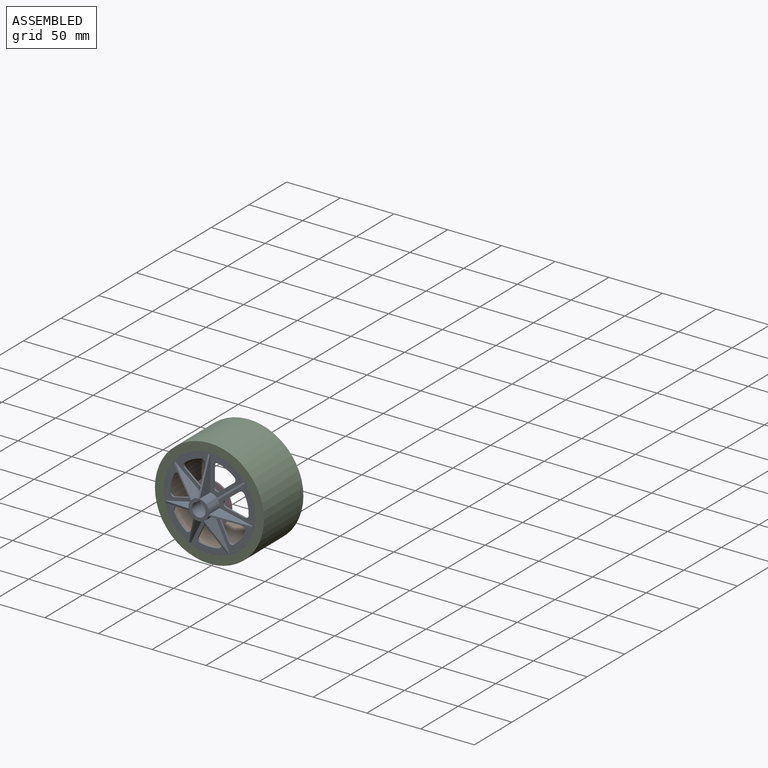
[diagram: assembled view]
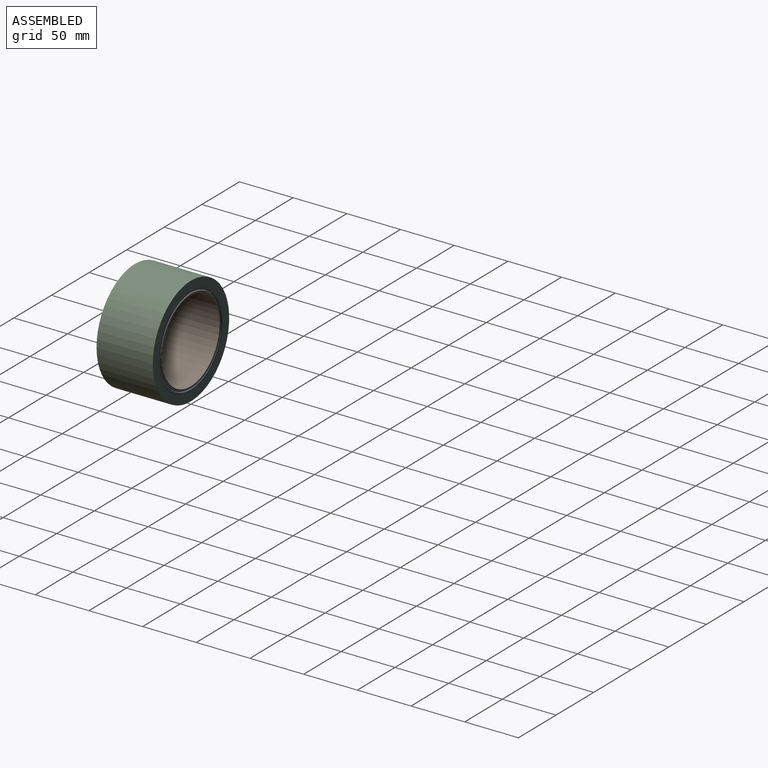
[diagram: assembled view, second angle]
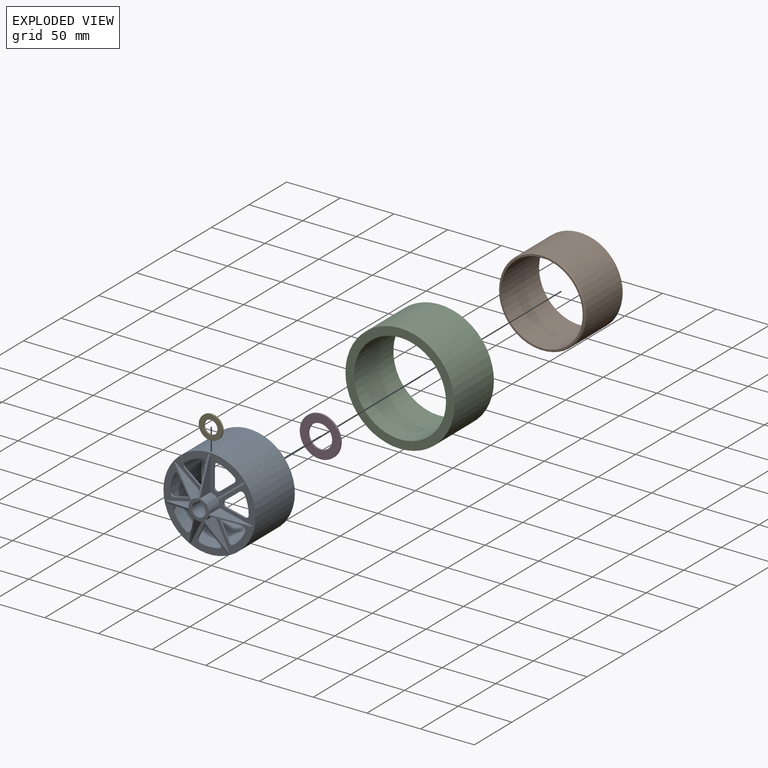
[diagram: exploded view]
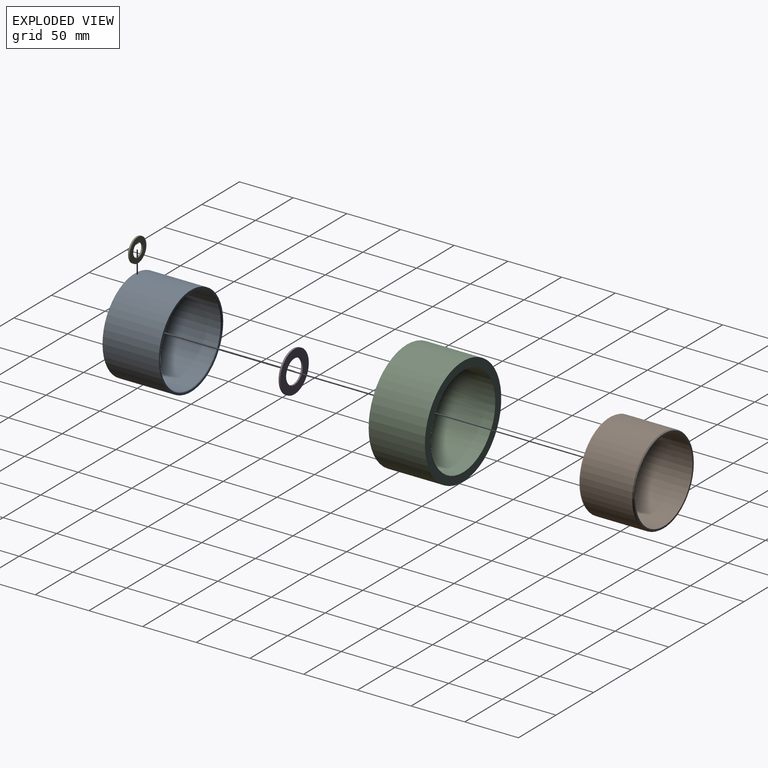
[diagram: exploded view, second angle]
ASSEMBLY  parts=5 mates=4
PART A: 88 faces, bbox 85.7x66.7x85.7 mm
  f0: plane 80.96x80.96mm, normal (0,1,0), area 2736.7mm2, adj f9,f41,f42,f43,f44,f45,f46,f47
  f1: plane 19.05x19.05mm, normal (0,-1,0), area 153.2mm2, adj f3,f4,f5,f6,f7,f8,f12,f13
  f2: plane 85.73x85.73mm, normal (0,-1,0), area 2853.4mm2, adj f3,f4,f5,f6,f7,f8,f10,f12
  f3: cylinder r=9.53mm len=14.29mm, axis (0,1,0), area 99.4mm2, adj f1,f2,f33,f38
  f4: cylinder r=9.53mm len=14.29mm, axis (0,1,0), area 99.4mm2, adj f1,f2,f29,f34
  f5: cylinder r=9.53mm len=14.29mm, axis (0,1,0), area 99.4mm2, adj f1,f2,f25,f30
  f6: cylinder r=9.53mm len=14.29mm, axis (0,1,0), area 99.4mm2, adj f1,f2,f21,f26
  f7: cylinder r=9.53mm len=14.29mm, axis (0,1,0), area 99.4mm2, adj f1,f2,f17,f22
  f8: cylinder r=9.53mm len=14.29mm, axis (0,1,0), area 99.4mm2, adj f1,f2,f13,f18
  f9: cylinder r=40.48mm len=80.96mm, axis (0,1,0), area 12791.8mm2, adj f0,f87
  f10: cylinder r=42.86mm len=85.73mm, axis (0,1,0), area 14108.6mm2, adj f2,f11
  f11: plane 85.73x85.73mm, normal (0,1,0), area 493.5mm2, adj f10,f87
  f12: cylinder r=9.53mm len=14.29mm, axis (0,1,0), area 99.4mm2, adj f1,f2,f14,f37
  f13: plane 31.85x14.29mm, normal (1,0,0), area 238.1mm2, adj f1,f2,f8,f15,f16
  f14: plane 31.85x14.29mm, normal (-1,0,0), area 238.1mm2, adj f1,f2,f12,f15,f16
  f15: plane 1.59x0.65mm, normal (0,0,1), area 1mm2, adj f2,f13,f14,f16
  f16: plane 31.81x13.63mm, normal (0,-0.92,0.39), area 54.9mm2, adj f1,f13,f14,f15
  f17: plane 24.9x19.86mm, normal (0.62,0,-0.78), area 238.1mm2, adj f1,f2,f7,f19,f20
  f18: plane 24.9x19.86mm, normal (-0.62,0,0.78), area 238.1mm2, adj f1,f2,f8,f19,f20
  f19: plane 1.24x0.99mm, normal (0.78,0,0.62), area 1mm2, adj f2,f17,f18,f20
  f20: plane 25.86x21.08mm, normal (0.31,-0.92,0.25), area 54.9mm2, adj f1,f17,f18,f19
  f21: plane 31.05x14.29mm, normal (-0.22,0,-0.97), area 238.1mm2, adj f1,f2,f6,f23,f24
  f22: plane 31.05x14.29mm, normal (0.22,0,0.97), area 238.1mm2, adj f1,f2,f7,f23,f24
  f23: plane 1.55x0.65mm, normal (0.97,0,-0.22), area 1mm2, adj f2,f21,f22,f24
  f24: plane 31.37x13.63mm, normal (0.38,-0.92,-0.09), area 54.9mm2, adj f1,f21,f22,f23
  f25: plane 28.69x14.29mm, normal (-0.9,0,-0.43), area 238.1mm2, adj f1,f2,f5,f27,f28
  f26: plane 28.69x14.29mm, normal (0.9,0,0.43), area 238.1mm2, adj f1,f2,f6,f27,f28
  f27: plane 1.43x0.69mm, normal (0.43,0,-0.9), area 1mm2, adj f2,f25,f26,f28
  f28: plane 29.35x15.23mm, normal (0.17,-0.92,-0.35), area 54.9mm2, adj f1,f25,f26,f27
  f29: plane 28.69x14.29mm, normal (-0.9,0,0.43), area 238.1mm2, adj f1,f2,f4,f31,f32
  f30: plane 28.69x14.29mm, normal (0.9,0,-0.43), area 238.1mm2, adj f1,f2,f5,f31,f32
  f31: plane 1.43x0.69mm, normal (-0.43,0,-0.9), area 1mm2, adj f2,f29,f30,f32
  f32: plane 29.35x15.23mm, normal (-0.17,-0.92,-0.35), area 54.9mm2, adj f1,f29,f30,f31
  f33: plane 31.05x14.29mm, normal (-0.22,0,0.97), area 238.1mm2, adj f1,f2,f3,f35,f36
  f34: plane 31.05x14.29mm, normal (0.22,0,-0.97), area 238.1mm2, adj f1,f2,f4,f35,f36
  f35: plane 1.55x0.65mm, normal (-0.97,0,-0.22), area 1mm2, adj f2,f33,f34,f36
  f36: plane 31.37x13.63mm, normal (-0.38,-0.92,-0.09), area 54.9mm2, adj f1,f33,f34,f35
  f37: plane 24.9x19.86mm, normal (0.62,0,0.78), area 238.1mm2, adj f1,f2,f12,f39,f40
  f38: plane 24.9x19.86mm, normal (-0.62,0,-0.78), area 238.1mm2, adj f1,f2,f3,f39,f40
  f39: plane 1.24x0.99mm, normal (-0.78,0,0.62), area 1mm2, adj f2,f37,f38,f40
  f40: plane 25.86x21.08mm, normal (-0.31,-0.92,0.25), area 54.9mm2, adj f1,f37,f38,f39
  f41: plane 15.88x3.18mm, normal (0,0,-1), area 50.4mm2, adj f0,f1,f42,f44
  f42: plane 15.88x1.79mm, normal (1,0,0), area 28.4mm2, adj f0,f1,f41,f43
  f43: cylinder r=6.35mm len=15.88mm, axis (0,-1,0), area 582.4mm2, adj f0,f1,f42,f44
  f44: plane 15.88x1.79mm, normal (-1,0,0), area 28.4mm2, adj f0,f1,f41,f43
  f45: cylinder r=3.17mm len=4.47mm, axis (0,-1,0), area 9mm2, adj f0,f2,f46,f49
  f46: cylinder r=36.51mm len=16.85mm, axis (0,-1,0), area 27mm2, adj f0,f2,f45,f47
  f47: cylinder r=3.17mm len=4.47mm, axis (0,-1,0), area 9mm2, adj f0,f2,f46,f48
  f48: plane 15.97x7.69mm, normal (-0.9,0,-0.43), area 28.1mm2, adj f0,f2,f47,f50
  f49: plane 15.97x7.69mm, normal (0.9,0,-0.43), area 28.1mm2, adj f0,f2,f45,f50
  f50: cylinder r=3.17mm len=5.72mm, axis (0,-1,0), area 11.3mm2, adj f0,f2,f48,f49
  f51: cylinder r=3.17mm len=4.82mm, axis (0,-1,0), area 9mm2, adj f0,f2,f52,f55
  f52: plane 15.97x7.69mm, normal (-0.9,0,0.43), area 28.1mm2, adj f0,f2,f51,f53
  f53: cylinder r=3.17mm len=4.55mm, axis (0,-1,0), area 11.3mm2, adj f0,f2,f52,f54
  f54: plane 17.28x3.95mm, normal (0.22,0,-0.97), area 28.1mm2, adj f0,f2,f53,f56
  f55: cylinder r=36.51mm len=13.17mm, axis (0,-1,0), area 27mm2, adj f0,f2,f51,f56
  f56: cylinder r=3.17mm len=4.45mm, axis (0,-1,0), area 9mm2, adj f0,f2,f54,f55
  f57: cylinder r=3.17mm len=3.88mm, axis (0,-1,0), area 9mm2, adj f0,f2,f58,f61
  f58: plane 17.28x3.95mm, normal (-0.22,0,0.97), area 28.1mm2, adj f0,f2,f57,f59
  f59: cylinder r=3.17mm len=5.58mm, axis (0,-1,0), area 11.3mm2, adj f0,f2,f58,f60
  f60: plane 13.86x11.05mm, normal (-0.62,0,-0.78), area 28.1mm2, adj f0,f2,f59,f62
  f61: cylinder r=36.51mm len=16.43mm, axis (0,-1,0), area 27mm2, adj f0,f2,f57,f62
  f62: cylinder r=3.17mm len=4.83mm, axis (0,-1,0), area 9mm2, adj f0,f2,f60,f61
  f63: cylinder r=3.17mm len=4.45mm, axis (0,-1,0), area 9mm2, adj f0,f2,f64,f67
  f64: plane 17.28x3.95mm, normal (-0.22,0,-0.97), area 28.1mm2, adj f0,f2,f63,f65
  f65: cylinder r=3.17mm len=4.55mm, axis (0,-1,0), area 11.3mm2, adj f0,f2,f64,f66
  f66: plane 15.97x7.69mm, normal (0.9,0,0.43), area 28.1mm2, adj f0,f2,f65,f68
  f67: cylinder r=36.51mm len=13.17mm, axis (0,-1,0), area 27mm2, adj f0,f2,f63,f68
  f68: cylinder r=3.17mm len=4.82mm, axis (0,-1,0), area 9mm2, adj f0,f2,f66,f67
  f69: cylinder r=3.17mm len=4.83mm, axis (0,-1,0), area 9mm2, adj f0,f2,f70,f73
  f70: plane 13.86x11.05mm, normal (0.62,0,-0.78), area 28.1mm2, adj f0,f2,f69,f71
  f71: cylinder r=3.17mm len=5.58mm, axis (0,-1,0), area 11.3mm2, adj f0,f2,f70,f72
  f72: plane 17.28x3.95mm, normal (0.22,0,0.97), area 28.1mm2, adj f0,f2,f71,f74
  f73: cylinder r=36.51mm len=16.43mm, axis (0,-1,0), area 27mm2, adj f0,f2,f69,f74
  f74: cylinder r=3.17mm len=3.88mm, axis (0,-1,0), area 9mm2, adj f0,f2,f72,f73
  f75: cylinder r=3.17mm len=3.86mm, axis (0,-1,0), area 9mm2, adj f0,f2,f76,f79
  f76: plane 17.73x1.59mm, normal (1,0,0), area 28.1mm2, adj f0,f2,f75,f77
  f77: cylinder r=3.17mm len=5.15mm, axis (0,-1,0), area 11.3mm2, adj f0,f2,f76,f78
  f78: plane 13.86x11.05mm, normal (-0.62,0,0.78), area 28.1mm2, adj f0,f2,f77,f80
  f79: cylinder r=36.51mm len=15.18mm, axis (0,-1,0), area 27mm2, adj f0,f2,f75,f80
  f80: cylinder r=3.17mm len=4.95mm, axis (0,-1,0), area 9mm2, adj f0,f2,f78,f79
  f81: cylinder r=3.17mm len=4.95mm, axis (0,-1,0), area 9mm2, adj f0,f2,f82,f85
  f82: plane 13.86x11.05mm, normal (0.62,0,0.78), area 28.1mm2, adj f0,f2,f81,f83
  f83: cylinder r=3.17mm len=5.15mm, axis (0,-1,0), area 11.3mm2, adj f0,f2,f82,f84
  f84: plane 17.73x1.59mm, normal (-1,0,0), area 28.1mm2, adj f0,f2,f83,f86
  f85: cylinder r=36.51mm len=15.18mm, axis (0,-1,0), area 27mm2, adj f0,f2,f81,f86
  f86: cylinder r=3.17mm len=3.86mm, axis (0,-1,0), area 9mm2, adj f0,f2,f84,f85
  f87: cone r=40.99mm half-angle=45deg, axis (0,1,0), area 183.9mm2, adj f9,f11
PART B: 6 faces, bbox 50.8x81x81 mm
  f0: cylinder r=38.1mm len=76.2mm, axis (-1,0,0), area 12161mm2, adj f2,f3
  f1: cylinder r=40.48mm len=80.96mm, axis (-1,0,0), area 12313.8mm2, adj f4,f5
  f2: plane 79.58x79.58mm, normal (1,0,0), area 414mm2, adj f0,f5
  f3: plane 79.58x79.58mm, normal (-1,0,0), area 414mm2, adj f0,f4
  f4: cone r=40.48mm half-angle=30deg, axis (1,0,0), area 347.6mm2, adj f1,f3
  f5: cone r=39.79mm half-angle=30deg, axis (-1,0,0), area 347.6mm2, adj f1,f2
PART C: 4 faces, bbox 101.6x52.4x101.6 mm
  f0: plane 101.6x101.6mm, normal (0,-1,0), area 2335.6mm2, adj f1,f2
  f1: cylinder r=42.86mm len=85.73mm, axis (0,1,0), area 14108.6mm2, adj f0,f3
  f2: cylinder r=50.8mm len=101.6mm, axis (0,1,0), area 16721.3mm2, adj f0,f3
  f3: plane 101.6x101.6mm, normal (0,1,0), area 2335.6mm2, adj f1,f2
PART D: 4 faces, bbox 1.5x38.1x38.1 mm
  f0: cylinder r=11.11mm len=22.23mm, axis (-1,0,0), area 103.7mm2, adj f2,f3
  f1: cylinder r=19.05mm len=38.1mm, axis (-1,0,0), area 177.9mm2, adj f2,f3
  f2: plane 38.1x38.1mm, normal (1,0,0), area 752.1mm2, adj f0,f1
  f3: plane 38.1x38.1mm, normal (-1,0,0), area 752.1mm2, adj f0,f1
PART E: 4 faces, bbox 1.5x22.2x22.2 mm
  f0: cylinder r=6.35mm len=12.7mm, axis (-1,0,0), area 59.3mm2, adj f2,f3
  f1: cylinder r=11.11mm len=22.23mm, axis (-1,0,0), area 103.7mm2, adj f2,f3
  f2: plane 22.23x22.23mm, normal (1,0,0), area 261.3mm2, adj f0,f1
  f3: plane 22.23x22.23mm, normal (-1,0,0), area 261.3mm2, adj f0,f1
PLACE A at identity fixed
PLACE B rot(axis=(0.58,-0.58,-0.58),120deg) t=(0,-25.4,-0.01)mm
PLACE C at identity
PLACE D rot(axis=(0.58,-0.58,-0.58),120deg) t=(0,-50.06,0)mm
PLACE E rot(axis=(0.58,-0.58,-0.58),120deg) t=(0,-50.06,0)mm
MATE fastened A.f0 <-> B.f0  axis (0,1,0) through (0,-50.8,-0.01)mm
MATE fastened A.f3 <-> E.f0  axis (0,-1,0) through (0,-50.8,0)mm
MATE fastened A.f3 <-> C.f1  axis (0,1,0) through (0,-26.19,0)mm
MATE fastened A.f3 <-> D.f0  axis (0,-1,0) through (0,-50.8,0)mm
